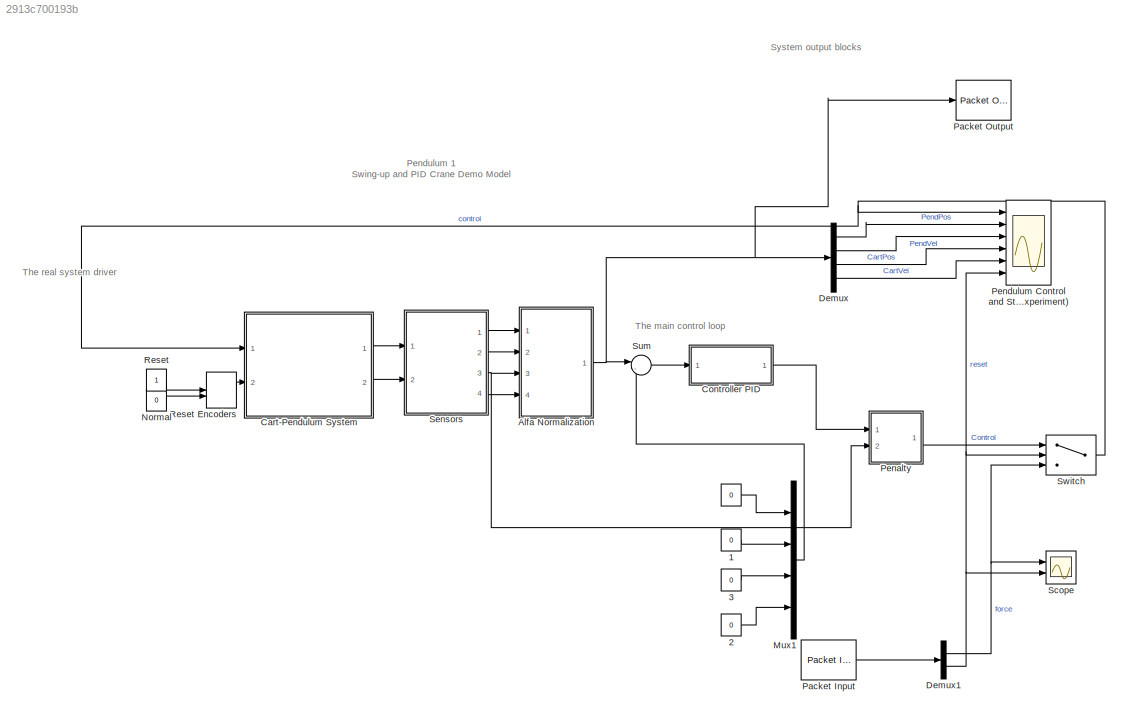
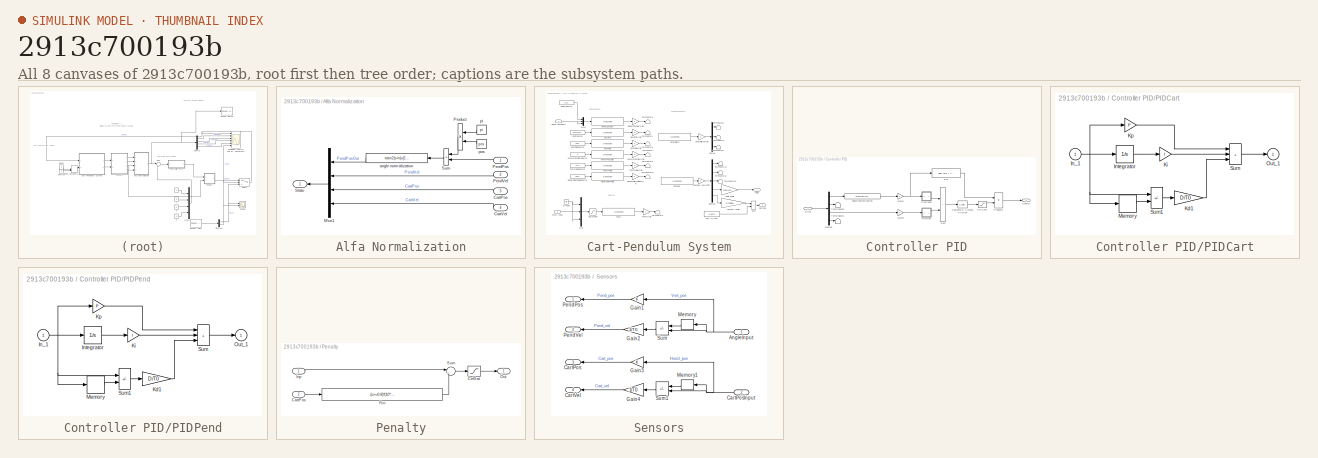
[diagram: thumbnail index - all 8 canvases of the model, root first then tree order]
MODEL slx_2913c700193b
KIND model
CONFIG AbsTol = 1e-6
CONFIG EnableMultiTasking = off
CONFIG FixedStep = 0.01
CONFIG MaxStep = auto
CONFIG MinStep = auto
CONFIG RelTol = 1e-3
CONFIG SampleTimeConstraint = Unconstrained
CONFIG SolverName = ode5
CONFIG StartTime = 0.0
CONFIG StopTime = 9999
BLOCK [Constant]  
  Value = 0
BLOCK [Constant]  1
  Value = 0
BLOCK [Constant]  2
  Value = 0
BLOCK [Constant]  3
  Value = 0
BLOCK [SubSystem] Alfa Normalization
  Ports = [4, 1]
  RequestExecContextInheritance = off
BLOCK [Inport] Alfa Normalization/CartPos
  Port = 3
BLOCK [Inport] Alfa Normalization/CartVel
  Port = 4
BLOCK [Mux] Alfa Normalization/Mux1
  NameLocation = top
  Ports = [4, 1]
BLOCK [Inport] Alfa Normalization/PendPos
BLOCK [Inport] Alfa Normalization/PendVel
  Port = 2
BLOCK [Product] Alfa Normalization/Product
  InputSameDT = on
  NameLocation = top
  OutDataTypeStr = Inherit: Same as first input
  Ports = [2, 1]
  SaturateOnIntegerOverflow = on
BLOCK [Outport] Alfa Normalization/State
  InitialOutput = 0
BLOCK [Sum] Alfa Normalization/Sum
  IconShape = rectangular
  InputSameDT = on
  NameLocation = top
  OutDataTypeStr = Inherit: Same as first input
  Ports = [2, 1]
  SaturateOnIntegerOverflow = on
BLOCK [Fcn] Alfa Normalization/angle normalization
  Expr = atan2(sin(u[1]),cos(u[1]))
  NameLocation = top
BLOCK [Constant] Alfa Normalization/pi
  NameLocation = top
  Value = pi
BLOCK [Constant] Alfa Normalization/pos
  Value = pos
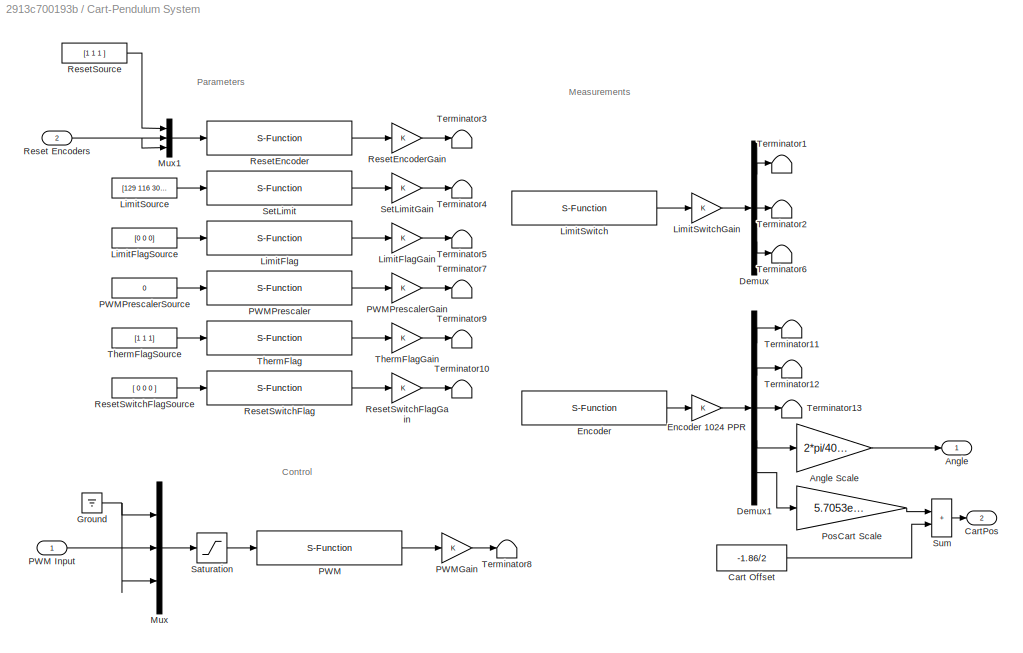
BLOCK [SubSystem] Cart-Pendulum System
  Ports = [2, 2]
  RequestExecContextInheritance = off
BLOCK [Outport] Cart-Pendulum System/Angle
BLOCK [Gain] Cart-Pendulum System/Angle Scale
  Gain = 2*pi/4096
  OutDataTypeStr = Inherit: Same as input
  ParamDataTypeStr = Inherit: Same as input
BLOCK [Constant] Cart-Pendulum System/Cart Offset
  Value = -1.86/2
BLOCK [Outport] Cart-Pendulum System/CartPos
  Port = 2
BLOCK [Demux] Cart-Pendulum System/Demux
  DisplayOption = none
  Outputs = 3
  Ports = [1, 3]
BLOCK [Demux] Cart-Pendulum System/Demux1
  DisplayOption = none
  Outputs = 5
  Ports = [1, 5]
BLOCK [S-Function] Cart-Pendulum System/Encoder
  EnableBusSupport = off
  FunctionName = P1_Encoder
  Parameters = BaseAddress, T0
  Ports = [0, 1]
  SFcnIsStateOwnerBlock = off
  SFunctionDeploymentMode = off
BLOCK [Gain] Cart-Pendulum System/Encoder 1024 PPR
  OutDataTypeStr = Inherit: Same as input
  ParamDataTypeStr = Inherit: Same as input
  SaturateOnIntegerOverflow = on
BLOCK [Ground] Cart-Pendulum System/Ground
BLOCK [S-Function] Cart-Pendulum System/LimitFlag
  EnableBusSupport = off
  FunctionName = P1_LimitFlag
  Parameters = BaseAddress, T0
  Ports = [1, 1]
  SFcnIsStateOwnerBlock = off
  SFunctionDeploymentMode = off
BLOCK [Gain] Cart-Pendulum System/LimitFlagGain
  OutDataTypeStr = Inherit: Same as input
  ParamDataTypeStr = Inherit: Same as input
  SaturateOnIntegerOverflow = on
BLOCK [Constant] Cart-Pendulum System/LimitFlagSource
  Value = [0 0 0]
BLOCK [Constant] Cart-Pendulum System/LimitSource
  Value = [129 116 300]
BLOCK [S-Function] Cart-Pendulum System/LimitSwitch
  EnableBusSupport = off
  FunctionName = P1_Switch
  Parameters = BaseAddress, T0
  Ports = [0, 1]
  SFcnIsStateOwnerBlock = off
  SFunctionDeploymentMode = off
BLOCK [Gain] Cart-Pendulum System/LimitSwitchGain
  OutDataTypeStr = Inherit: Same as input
  ParamDataTypeStr = Inherit: Same as input
  SaturateOnIntegerOverflow = on
BLOCK [Mux] Cart-Pendulum System/Mux
  Inputs = 3
  Ports = [3, 1]
BLOCK [Mux] Cart-Pendulum System/Mux1
  DisplayOption = bar
  Inputs = [3 1 1]
  Ports = [3, 1]
BLOCK [S-Function] Cart-Pendulum System/PWM
  EnableBusSupport = off
  FunctionName = P1_PWM
  Parameters = BaseAddress, T0
  Ports = [1, 1]
  SFcnIsStateOwnerBlock = off
  SFunctionDeploymentMode = off
BLOCK [Inport] Cart-Pendulum System/PWM Input
BLOCK [Gain] Cart-Pendulum System/PWMGain
  OutDataTypeStr = Inherit: Same as input
  ParamDataTypeStr = Inherit: Same as input
  SaturateOnIntegerOverflow = on
BLOCK [S-Function] Cart-Pendulum System/PWMPrescaler
  EnableBusSupport = off
  FunctionName = P1_PWMPrescaler
  Parameters = BaseAddress, T0
  Ports = [1, 1]
  SFcnIsStateOwnerBlock = off
  SFunctionDeploymentMode = off
BLOCK [Gain] Cart-Pendulum System/PWMPrescalerGain
  OutDataTypeStr = Inherit: Same as input
  ParamDataTypeStr = Inherit: Same as input
  SaturateOnIntegerOverflow = on
BLOCK [Constant] Cart-Pendulum System/PWMPrescalerSource
  Value = 0
BLOCK [Gain] Cart-Pendulum System/PosCart Scale
  Gain = 5.7053e-005
  OutDataTypeStr = Inherit: Same as input
  ParamDataTypeStr = Inherit: Same as input
BLOCK [Inport] Cart-Pendulum System/Reset Encoders
  Port = 2
BLOCK [S-Function] Cart-Pendulum System/ResetEncoder
  EnableBusSupport = off
  FunctionName = P1_ResetEncoder
  Parameters = BaseAddress, T0
  Ports = [1, 1]
  SFcnIsStateOwnerBlock = off
  SFunctionDeploymentMode = off
BLOCK [Gain] Cart-Pendulum System/ResetEncoderGain
  OutDataTypeStr = Inherit: Same as input
  ParamDataTypeStr = Inherit: Same as input
  SaturateOnIntegerOverflow = on
BLOCK [Constant] Cart-Pendulum System/ResetSource
  Value = [1 1 1 ]
BLOCK [S-Function] Cart-Pendulum System/ResetSwitchFlag 
  EnableBusSupport = off
  FunctionName = P1_ResetSwitchFlag
  Parameters = BaseAddress, T0
  Ports = [1, 1]
  SFcnIsStateOwnerBlock = off
  SFunctionDeploymentMode = off
BLOCK [Gain] Cart-Pendulum System/ResetSwitchFlagGain
  OutDataTypeStr = Inherit: Same as input
  ParamDataTypeStr = Inherit: Same as input
  SaturateOnIntegerOverflow = on
BLOCK [Constant] Cart-Pendulum System/ResetSwitchFlagSource
  Value = [ 0 0 0 ]
BLOCK [Saturate] Cart-Pendulum System/Saturation
BLOCK [S-Function] Cart-Pendulum System/SetLimit
  EnableBusSupport = off
  FunctionName = P1_SetLimit
  Parameters = BaseAddress, T0
  Ports = [1, 1]
  SFcnIsStateOwnerBlock = off
  SFunctionDeploymentMode = off
BLOCK [Gain] Cart-Pendulum System/SetLimitGain
  OutDataTypeStr = Inherit: Same as input
  ParamDataTypeStr = Inherit: Same as input
  SaturateOnIntegerOverflow = on
BLOCK [Sum] Cart-Pendulum System/Sum
  IconShape = rectangular
  InputSameDT = on
  OutDataTypeStr = Inherit: Same as first input
  Ports = [2, 1]
  SaturateOnIntegerOverflow = on
BLOCK [Terminator] Cart-Pendulum System/Terminator1
BLOCK [Terminator] Cart-Pendulum System/Terminator10
BLOCK [Terminator] Cart-Pendulum System/Terminator11
BLOCK [Terminator] Cart-Pendulum System/Terminator12
BLOCK [Terminator] Cart-Pendulum System/Terminator13
BLOCK [Terminator] Cart-Pendulum System/Terminator2
BLOCK [Terminator] Cart-Pendulum System/Terminator3
BLOCK [Terminator] Cart-Pendulum System/Terminator4
BLOCK [Terminator] Cart-Pendulum System/Terminator5
BLOCK [Terminator] Cart-Pendulum System/Terminator6
BLOCK [Terminator] Cart-Pendulum System/Terminator7
BLOCK [Terminator] Cart-Pendulum System/Terminator8
BLOCK [Terminator] Cart-Pendulum System/Terminator9
BLOCK [S-Function] Cart-Pendulum System/ThermFlag 
  EnableBusSupport = off
  FunctionName = P1_ThermFlag
  Parameters = BaseAddress, T0
  Ports = [1, 1]
  SFcnIsStateOwnerBlock = off
  SFunctionDeploymentMode = off
BLOCK [Gain] Cart-Pendulum System/ThermFlagGain
  OutDataTypeStr = Inherit: Same as input
  ParamDataTypeStr = Inherit: Same as input
  SaturateOnIntegerOverflow = on
BLOCK [Constant] Cart-Pendulum System/ThermFlagSource
  Value = [1 1 1]
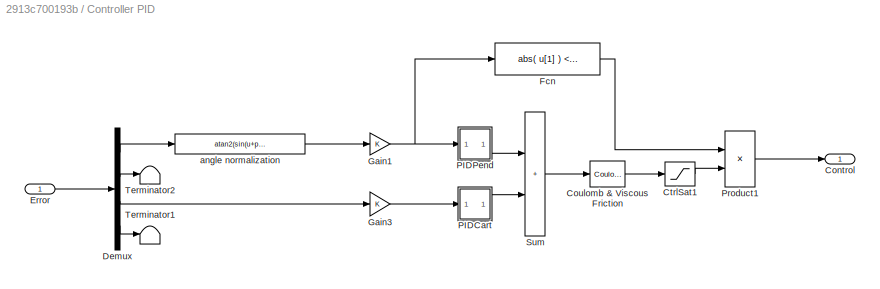
BLOCK [SubSystem] Controller PID
  Ports = [1, 1]
  RequestExecContextInheritance = off
BLOCK [Outport] Controller PID/Control
  InitialOutput = 0
  NameLocation = top
BLOCK [Reference] Controller PID/Coulomb & Viscous Friction  REF=simulink/Discontinuities/Coulomb &
Viscous Friction
  Ports = [1, 1]
  SourceBlock = simulink/Discontinuities/Coulomb &\nViscous Friction
  SourceProductBaseCode = SL
  SourceType = Coulombic and Viscous Friction
BLOCK [Saturate] Controller PID/CtrlSat1
  LowerLimit = -Umax
  UpperLimit = Umax
BLOCK [Demux] Controller PID/Demux
  DisplayOption = none
  Ports = [1, 4]
BLOCK [Inport] Controller PID/Error
  NameLocation = top
BLOCK [Fcn] Controller PID/Fcn
  Expr = abs( u[1] ) < zone
BLOCK [Gain] Controller PID/Gain1
  OutDataTypeStr = Inherit: Same as input
  ParamDataTypeStr = Inherit: Same as input
  SaturateOnIntegerOverflow = on
BLOCK [Gain] Controller PID/Gain3
  OutDataTypeStr = Inherit: Same as input
  ParamDataTypeStr = Inherit: Same as input
  SaturateOnIntegerOverflow = on
BLOCK [SubSystem] Controller PID/PIDCart
  Ports = [1, 1]
  RequestExecContextInheritance = off
BLOCK [Inport] Controller PID/PIDCart/In_1
BLOCK [Integrator] Controller PID/PIDCart/Integrator
  LimitOutput = on
  LowerSaturationLimit = -1
  Ports = [1, 1]
  UpperSaturationLimit = 1
BLOCK [Gain] Controller PID/PIDCart/Kd1
  Gain = D/T0
  OutDataTypeStr = Inherit: Same as input
  ParamDataTypeStr = Inherit: Same as input
  SaturateOnIntegerOverflow = on
BLOCK [Gain] Controller PID/PIDCart/Ki
  Gain = I
  OutDataTypeStr = Inherit: Same as input
  ParamDataTypeStr = Inherit: Same as input
  SaturateOnIntegerOverflow = on
BLOCK [Gain] Controller PID/PIDCart/Kp
  Gain = P
  OutDataTypeStr = Inherit: Same as input
  ParamDataTypeStr = Inherit: Same as input
  SaturateOnIntegerOverflow = on
BLOCK [Memory] Controller PID/PIDCart/Memory
BLOCK [Outport] Controller PID/PIDCart/Out_1
  InitialOutput = 0
BLOCK [Sum] Controller PID/PIDCart/Sum
  IconShape = rectangular
  InputSameDT = on
  Inputs = +++
  OutDataTypeStr = Inherit: Same as first input
  Ports = [3, 1]
  SaturateOnIntegerOverflow = on
BLOCK [Sum] Controller PID/PIDCart/Sum1
  IconShape = rectangular
  InputSameDT = on
  Inputs = +-
  OutDataTypeStr = Inherit: Same as first input
  Ports = [2, 1]
  SaturateOnIntegerOverflow = on
BLOCK [SubSystem] Controller PID/PIDPend
  Ports = [1, 1]
  RequestExecContextInheritance = off
BLOCK [Inport] Controller PID/PIDPend/In_1
BLOCK [Integrator] Controller PID/PIDPend/Integrator
  LimitOutput = on
  LowerSaturationLimit = -1
  Ports = [1, 1]
  UpperSaturationLimit = 1
BLOCK [Gain] Controller PID/PIDPend/Kd1
  Gain = D/T0
  OutDataTypeStr = Inherit: Same as input
  ParamDataTypeStr = Inherit: Same as input
  SaturateOnIntegerOverflow = on
BLOCK [Gain] Controller PID/PIDPend/Ki
  Gain = I
  OutDataTypeStr = Inherit: Same as input
  ParamDataTypeStr = Inherit: Same as input
  SaturateOnIntegerOverflow = on
BLOCK [Gain] Controller PID/PIDPend/Kp
  Gain = P
  OutDataTypeStr = Inherit: Same as input
  ParamDataTypeStr = Inherit: Same as input
  SaturateOnIntegerOverflow = on
BLOCK [Memory] Controller PID/PIDPend/Memory
BLOCK [Outport] Controller PID/PIDPend/Out_1
  InitialOutput = 0
BLOCK [Sum] Controller PID/PIDPend/Sum
  IconShape = rectangular
  InputSameDT = on
  Inputs = +++
  OutDataTypeStr = Inherit: Same as first input
  Ports = [3, 1]
  SaturateOnIntegerOverflow = on
BLOCK [Sum] Controller PID/PIDPend/Sum1
  IconShape = rectangular
  InputSameDT = on
  Inputs = +-
  OutDataTypeStr = Inherit: Same as first input
  Ports = [2, 1]
  SaturateOnIntegerOverflow = on
BLOCK [Product] Controller PID/Product1
  InputSameDT = on
  OutDataTypeStr = Inherit: Same as first input
  Ports = [2, 1]
  SaturateOnIntegerOverflow = on
BLOCK [Sum] Controller PID/Sum
  IconShape = rectangular
  InputSameDT = on
  OutDataTypeStr = Inherit: Same as first input
  Ports = [2, 1]
  SaturateOnIntegerOverflow = on
BLOCK [Terminator] Controller PID/Terminator1
BLOCK [Terminator] Controller PID/Terminator2
BLOCK [Fcn] Controller PID/angle normalization
  Expr = atan2(sin(u+pi),cos(u+pi))
BLOCK [Demux] Demux
  DisplayOption = none
  Ports = [1, 4]
BLOCK [Demux] Demux1
  Outputs = 2
  Ports = [1, 2]
BLOCK [Mux] Mux1
  DisplayOption = bar
  Ports = [4, 1]
BLOCK [Constant] Normal
  Value = 0
BLOCK [Reference] Packet Input  REF=sldrtlib/Packet Input
  AttributesFormatString = Standard Devices\nUDP Protocol [4000h]
  Ports = [0, 1]
  SourceBlock = sldrtlib/Packet Input
  SourceProductBaseCode = WT
  SourceType = Simulink Desktop Real-Time Packet Input
BLOCK [Reference] Packet Output  REF=sldrtlib/Packet Output
  AttributesFormatString = Standard Devices\nUDP Protocol [4001h]
  Ports = [1]
  SourceBlock = sldrtlib/Packet Output
  SourceProductBaseCode = WT
  SourceType = Simulink Desktop Real-Time Packet Output
BLOCK [SubSystem] Penalty
  Ports = [2, 1]
  RequestExecContextInheritance = off
BLOCK [Inport] Penalty/CartPos
  Port = 2
BLOCK [Saturate] Penalty/CtrlSat
  LowerLimit = -0.4
  UpperLimit = 0.4
BLOCK [Fcn] Penalty/Fcn
  Expr = (u>=0.8)*(10*(u-0.8))^3 + (u<=-0.8)*(10*(u+0.8))^3
BLOCK [Inport] Penalty/Inp
BLOCK [Outport] Penalty/Out
BLOCK [Sum] Penalty/Sum
  InputSameDT = on
  Inputs = |++
  OutDataTypeStr = Inherit: Same as first input
  Ports = [2, 1]
  SaturateOnIntegerOverflow = on
BLOCK [Scope] Pendulum Control and States (Experiment)
  ExtModeUploadOption = log
  Floating = off
  NumInputPorts = 6
  Ports = [6]
  ScopeSpecificationString = Simulink.scopes.TimeScopeBlockCfg('CurrentConfiguration', extmgr.ConfigurationSet(extmgr.Configuration('Core','General UI',true),extmgr.Configuration('Core','Source UI',true),extmgr.Configuration('Sources','WiredSimulink',true,'DataLogging',true,'DataLoggingVariableName','P1_Data','DataLoggingSaveFormat','StructureWithTime','DataLoggingMaxPoints','50000','DataLoggingDecimation','1','DataLoggingDec...<+5114ch>
BLOCK [Constant] Reset
  NameLocation = top
BLOCK [ManualSwitch] Reset Encoders
  CurrentSetting = 0
BLOCK [Scope] Scope
  Floating = off
  NumInputPorts = 2
  Ports = [2]
  ScopeSpecificationString = Simulink.scopes.TimeScopeBlockCfg('CurrentConfiguration', extmgr.ConfigurationSet(extmgr.Configuration('Core','General UI',true),extmgr.Configuration('Core','Source UI',true),extmgr.Configuration('Sources','WiredSimulink',true,'DataLoggingSaveFormat','StructureWithTime','DataLoggingLimitDataPoints',true,'DataLoggingDecimation','1','DataLoggingDecimateData',true),extmgr.Configuration('Visuals','Tim...<+2414ch>
BLOCK [SubSystem] Sensors
  Ports = [2, 4]
  RequestExecContextInheritance = off
BLOCK [Inport] Sensors/AngleInput
  NameLocation = top
BLOCK [Outport] Sensors/CartPos
  InitialOutput = 0
  Port = 3
BLOCK [Inport] Sensors/CartPosInput
  NameLocation = top
  Port = 2
BLOCK [Outport] Sensors/CartVel
  InitialOutput = 0
  Port = 4
BLOCK [Gain] Sensors/Gain1
  OutDataTypeStr = Inherit: Same as input
  ParamDataTypeStr = Inherit: Same as input
  SaturateOnIntegerOverflow = on
BLOCK [Gain] Sensors/Gain2
  Gain = 1/T0
  OutDataTypeStr = Inherit: Same as input
  ParamDataTypeStr = Inherit: Same as input
  SaturateOnIntegerOverflow = on
BLOCK [Gain] Sensors/Gain3
  OutDataTypeStr = Inherit: Same as input
  ParamDataTypeStr = Inherit: Same as input
  SaturateOnIntegerOverflow = on
BLOCK [Gain] Sensors/Gain4
  Gain = 1/T0
  OutDataTypeStr = Inherit: Same as input
  ParamDataTypeStr = Inherit: Same as input
  SaturateOnIntegerOverflow = on
BLOCK [Memory] Sensors/Memory
  NameLocation = top
BLOCK [Memory] Sensors/Memory1
  NameLocation = top
BLOCK [Outport] Sensors/PendPos
  InitialOutput = 0
BLOCK [Outport] Sensors/PendVel
  InitialOutput = 0
  Port = 2
BLOCK [Sum] Sensors/Sum
  IconShape = rectangular
  InputSameDT = on
  Inputs = -+
  NameLocation = top
  OutDataTypeStr = Inherit: Same as first input
  Ports = [2, 1]
  SaturateOnIntegerOverflow = on
BLOCK [Sum] Sensors/Sum1
  IconShape = rectangular
  InputSameDT = on
  Inputs = -+
  NameLocation = top
  OutDataTypeStr = Inherit: Same as first input
  Ports = [2, 1]
  SaturateOnIntegerOverflow = on
BLOCK [Sum] Sum
  InputSameDT = on
  Inputs = |-+
  OutDataTypeStr = Inherit: Same as first input
  Ports = [2, 1]
  SaturateOnIntegerOverflow = on
BLOCK [Switch] Switch
  Criteria = u2 > Threshold
  InputSameDT = off
  SaturateOnIntegerOverflow = off
ANNOTATION (root): Pendulum 1 Swing-up and PID Crane Demo Model
ANNOTATION (root): System output blocks
ANNOTATION (root): The main control loop
ANNOTATION (root): The real system driver
ANNOTATION Cart-Pendulum System: Control
ANNOTATION Cart-Pendulum System: Measurements
ANNOTATION Cart-Pendulum System: Parameters
LINE  1:1 -> Mux1:2
LINE  2:1 -> Mux1:4
LINE  3:1 -> Mux1:3
LINE  :1 -> Mux1:1
LINE Alfa Normalization/CartPos:1 -> Alfa Normalization/Mux1:3
LINE Alfa Normalization/CartVel:1 -> Alfa Normalization/Mux1:4
LINE Alfa Normalization/Mux1:1 -> Alfa Normalization/State:1
LINE Alfa Normalization/PendPos:1 -> Alfa Normalization/Sum:2
LINE Alfa Normalization/PendVel:1 -> Alfa Normalization/Mux1:2
LINE Alfa Normalization/Product:1 -> Alfa Normalization/Sum:1
LINE Alfa Normalization/Sum:1 -> Alfa Normalization/angle normalization:1
LINE Alfa Normalization/angle normalization:1 -> Alfa Normalization/Mux1:1
LINE Alfa Normalization/pi:1 -> Alfa Normalization/Product:1
LINE Alfa Normalization/pos:1 -> Alfa Normalization/Product:2
NET Alfa Normalization:1 -> Demux:1, Packet Output:1, Sum:1
LINE Cart-Pendulum System/Angle Scale:1 -> Cart-Pendulum System/Angle:1
LINE Cart-Pendulum System/Cart Offset:1 -> Cart-Pendulum System/Sum:2
LINE Cart-Pendulum System/Demux1:1 -> Cart-Pendulum System/Terminator11:1
LINE Cart-Pendulum System/Demux1:2 -> Cart-Pendulum System/Terminator12:1
LINE Cart-Pendulum System/Demux1:3 -> Cart-Pendulum System/Terminator13:1
LINE Cart-Pendulum System/Demux1:4 -> Cart-Pendulum System/Angle Scale:1
LINE Cart-Pendulum System/Demux1:5 -> Cart-Pendulum System/PosCart Scale:1
LINE Cart-Pendulum System/Demux:1 -> Cart-Pendulum System/Terminator1:1
LINE Cart-Pendulum System/Demux:2 -> Cart-Pendulum System/Terminator2:1
LINE Cart-Pendulum System/Demux:3 -> Cart-Pendulum System/Terminator6:1
LINE Cart-Pendulum System/Encoder 1024 PPR:1 -> Cart-Pendulum System/Demux1:1
LINE Cart-Pendulum System/Encoder:1 -> Cart-Pendulum System/Encoder 1024 PPR:1
NET Cart-Pendulum System/Ground:1 -> Cart-Pendulum System/Mux:1, Cart-Pendulum System/Mux:3
LINE Cart-Pendulum System/LimitFlag:1 -> Cart-Pendulum System/LimitFlagGain:1
LINE Cart-Pendulum System/LimitFlagGain:1 -> Cart-Pendulum System/Terminator5:1
LINE Cart-Pendulum System/LimitFlagSource:1 -> Cart-Pendulum System/LimitFlag:1
LINE Cart-Pendulum System/LimitSource:1 -> Cart-Pendulum System/SetLimit:1
LINE Cart-Pendulum System/LimitSwitch:1 -> Cart-Pendulum System/LimitSwitchGain:1
LINE Cart-Pendulum System/LimitSwitchGain:1 -> Cart-Pendulum System/Demux:1
LINE Cart-Pendulum System/Mux1:1 -> Cart-Pendulum System/ResetEncoder:1
LINE Cart-Pendulum System/Mux:1 -> Cart-Pendulum System/Saturation:1
LINE Cart-Pendulum System/PWM Input:1 -> Cart-Pendulum System/Mux:2
LINE Cart-Pendulum System/PWM:1 -> Cart-Pendulum System/PWMGain:1
LINE Cart-Pendulum System/PWMGain:1 -> Cart-Pendulum System/Terminator8:1
LINE Cart-Pendulum System/PWMPrescaler:1 -> Cart-Pendulum System/PWMPrescalerGain:1
LINE Cart-Pendulum System/PWMPrescalerGain:1 -> Cart-Pendulum System/Terminator7:1
LINE Cart-Pendulum System/PWMPrescalerSource:1 -> Cart-Pendulum System/PWMPrescaler:1
LINE Cart-Pendulum System/PosCart Scale:1 -> Cart-Pendulum System/Sum:1
NET Cart-Pendulum System/Reset Encoders:1 -> Cart-Pendulum System/Mux1:2, Cart-Pendulum System/Mux1:3
LINE Cart-Pendulum System/ResetEncoder:1 -> Cart-Pendulum System/ResetEncoderGain:1
LINE Cart-Pendulum System/ResetEncoderGain:1 -> Cart-Pendulum System/Terminator3:1
LINE Cart-Pendulum System/ResetSource:1 -> Cart-Pendulum System/Mux1:1
LINE Cart-Pendulum System/ResetSwitchFlag :1 -> Cart-Pendulum System/ResetSwitchFlagGain:1
LINE Cart-Pendulum System/ResetSwitchFlagGain:1 -> Cart-Pendulum System/Terminator10:1
LINE Cart-Pendulum System/ResetSwitchFlagSource:1 -> Cart-Pendulum System/ResetSwitchFlag :1
LINE Cart-Pendulum System/Saturation:1 -> Cart-Pendulum System/PWM:1
LINE Cart-Pendulum System/SetLimit:1 -> Cart-Pendulum System/SetLimitGain:1
LINE Cart-Pendulum System/SetLimitGain:1 -> Cart-Pendulum System/Terminator4:1
LINE Cart-Pendulum System/Sum:1 -> Cart-Pendulum System/CartPos:1
LINE Cart-Pendulum System/ThermFlag :1 -> Cart-Pendulum System/ThermFlagGain:1
LINE Cart-Pendulum System/ThermFlagGain:1 -> Cart-Pendulum System/Terminator9:1
LINE Cart-Pendulum System/ThermFlagSource:1 -> Cart-Pendulum System/ThermFlag :1
LINE Cart-Pendulum System:1 -> Sensors:1
LINE Cart-Pendulum System:2 -> Sensors:2
LINE Controller PID/Coulomb & Viscous Friction:1 -> Controller PID/CtrlSat1:1
LINE Controller PID/CtrlSat1:1 -> Controller PID/Product1:2
LINE Controller PID/Demux:1 -> Controller PID/angle normalization:1
LINE Controller PID/Demux:2 -> Controller PID/Terminator2:1
LINE Controller PID/Demux:3 -> Controller PID/Gain3:1
LINE Controller PID/Demux:4 -> Controller PID/Terminator1:1
LINE Controller PID/Error:1 -> Controller PID/Demux:1
LINE Controller PID/Fcn:1 -> Controller PID/Product1:1
NET Controller PID/Gain1:1 -> Controller PID/Fcn:1, Controller PID/PIDPend:1
LINE Controller PID/Gain3:1 -> Controller PID/PIDCart:1
NET Controller PID/PIDCart/In_1:1 -> Controller PID/PIDCart/Integrator:1, Controller PID/PIDCart/Kp:1, Controller PID/PIDCart/Memory:1, Controller PID/PIDCart/Sum1:1
LINE Controller PID/PIDCart/Integrator:1 -> Controller PID/PIDCart/Ki:1
LINE Controller PID/PIDCart/Kd1:1 -> Controller PID/PIDCart/Sum:3
LINE Controller PID/PIDCart/Ki:1 -> Controller PID/PIDCart/Sum:2
LINE Controller PID/PIDCart/Kp:1 -> Controller PID/PIDCart/Sum:1
LINE Controller PID/PIDCart/Memory:1 -> Controller PID/PIDCart/Sum1:2
LINE Controller PID/PIDCart/Sum1:1 -> Controller PID/PIDCart/Kd1:1
LINE Controller PID/PIDCart/Sum:1 -> Controller PID/PIDCart/Out_1:1
LINE Controller PID/PIDCart:1 -> Controller PID/Sum:2
NET Controller PID/PIDPend/In_1:1 -> Controller PID/PIDPend/Integrator:1, Controller PID/PIDPend/Kp:1, Controller PID/PIDPend/Memory:1, Controller PID/PIDPend/Sum1:1
LINE Controller PID/PIDPend/Integrator:1 -> Controller PID/PIDPend/Ki:1
LINE Controller PID/PIDPend/Kd1:1 -> Controller PID/PIDPend/Sum:3
LINE Controller PID/PIDPend/Ki:1 -> Controller PID/PIDPend/Sum:2
LINE Controller PID/PIDPend/Kp:1 -> Controller PID/PIDPend/Sum:1
LINE Controller PID/PIDPend/Memory:1 -> Controller PID/PIDPend/Sum1:2
LINE Controller PID/PIDPend/Sum1:1 -> Controller PID/PIDPend/Kd1:1
LINE Controller PID/PIDPend/Sum:1 -> Controller PID/PIDPend/Out_1:1
LINE Controller PID/PIDPend:1 -> Controller PID/Sum:1
LINE Controller PID/Product1:1 -> Controller PID/Control:1
LINE Controller PID/Sum:1 -> Controller PID/Coulomb & Viscous Friction:1
LINE Controller PID/angle normalization:1 -> Controller PID/Gain1:1
LINE Controller PID:1 -> Penalty:1
NET Demux1:1 -> Scope:1, Switch:3
NET Demux1:2 -> Pendulum Control and States (Experiment):6, Scope:2, Switch:2
LINE Demux:1 -> Pendulum Control and States (Experiment):2
LINE Demux:2 -> Pendulum Control and States (Experiment):3
LINE Demux:3 -> Pendulum Control and States (Experiment):4
LINE Demux:4 -> Pendulum Control and States (Experiment):5
LINE Mux1:1 -> Sum:2
LINE Normal:1 -> Reset Encoders:2
LINE Packet Input:1 -> Demux1:1
LINE Penalty/CartPos:1 -> Penalty/Fcn:1
LINE Penalty/CtrlSat:1 -> Penalty/Out:1
LINE Penalty/Fcn:1 -> Penalty/Sum:2
LINE Penalty/Inp:1 -> Penalty/Sum:1
LINE Penalty/Sum:1 -> Penalty/CtrlSat:1
LINE Penalty:1 -> Switch:1
LINE Reset Encoders:1 -> Cart-Pendulum System:2
LINE Reset:1 -> Reset Encoders:1
NET Sensors/AngleInput:1 -> Sensors/Gain1:1, Sensors/Memory:1, Sensors/Sum:2
NET Sensors/CartPosInput:1 -> Sensors/Gain3:1, Sensors/Memory1:1, Sensors/Sum1:2
LINE Sensors/Gain1:1 -> Sensors/PendPos:1
LINE Sensors/Gain2:1 -> Sensors/PendVel:1
LINE Sensors/Gain3:1 -> Sensors/CartPos:1
LINE Sensors/Gain4:1 -> Sensors/CartVel:1
LINE Sensors/Memory1:1 -> Sensors/Sum1:1
LINE Sensors/Memory:1 -> Sensors/Sum:1
LINE Sensors/Sum1:1 -> Sensors/Gain4:1
LINE Sensors/Sum:1 -> Sensors/Gain2:1
LINE Sensors:1 -> Alfa Normalization:1
LINE Sensors:2 -> Alfa Normalization:2
NET Sensors:3 -> Alfa Normalization:3, Penalty:2
LINE Sensors:4 -> Alfa Normalization:4
LINE Sum:1 -> Controller PID:1
NET Switch:1 -> Cart-Pendulum System:1, Pendulum Control and States (Experiment):1
note: NET lines group one-source signal fan-out (src -> all destinations, sorted); 1:1 wires keep LINE
